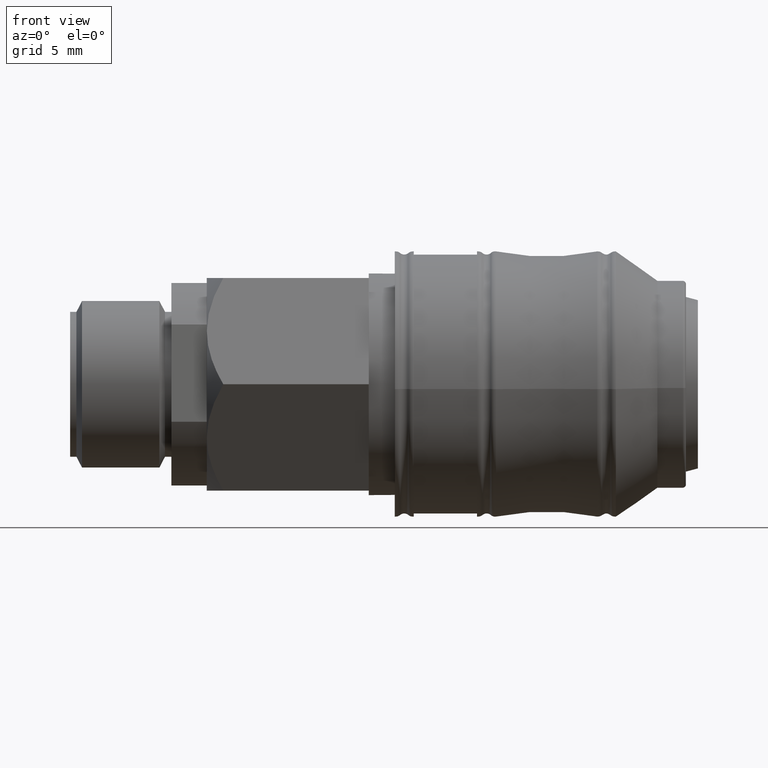
[diagram: clean part render]
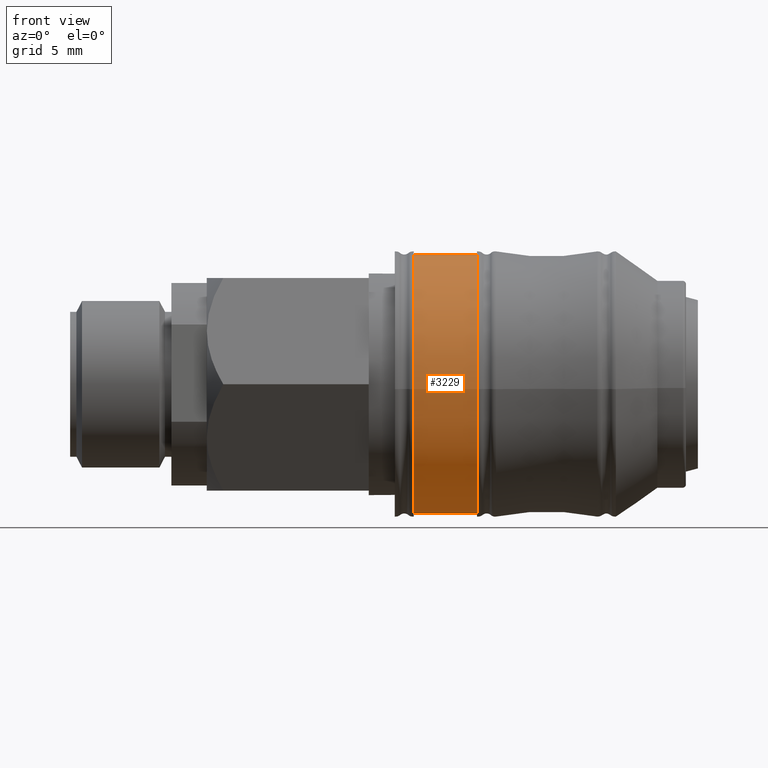
[diagram: same view with one face highlighted and labeled with its STEP entity id]
A machine part, front view. The second image highlights one B-rep face of the part: STEP entity #3229.
In plain terms, the highlighted cylindrical surface (bore or boss wall) has radius 10.25 mm, axis along (-1, 0, -0).
Its self-contained STEP definition (entity closure, byte-faithful):
#3198=CARTESIAN_POINT('',(16.350000000000009,-10.243263182529125,-0.371563417794677));
#3199=VERTEX_POINT('',#3198);
#3200=CARTESIAN_POINT('',(16.350000000000009,1.683787E-015,-8.914772E-016));
#3201=DIRECTION('',(-1.0,7.671066E-017,2.782597E-018));
#3202=DIRECTION('',(-7.676111E-017,-0.999342749515037,-0.036250089540944));
#3203=AXIS2_PLACEMENT_3D('',#3200,#3201,#3202);
#3204=CIRCLE('',#3203,10.25);
#3205=EDGE_CURVE('',#3199,#3199,#3204,.T.);
#3210=CARTESIAN_POINT('',(18.850000000000009,1.487997E-015,-7.878171E-016));
#3211=DIRECTION('',(-1.0,7.831566E-017,-4.146406E-017));
#3212=DIRECTION('',(-7.676111E-017,-0.999342749515037,-0.036250089540944));
#3213=AXIS2_PLACEMENT_3D('',#3210,#3211,#3212);
#3214=CYLINDRICAL_SURFACE('',#3213,10.249999999999998);
#3215=ORIENTED_EDGE('',*,*,#3205,.F.);
#3216=EDGE_LOOP('',(#3215));
#3217=FACE_OUTER_BOUND('',#3216,.T.);
#3218=CARTESIAN_POINT('',(21.350000000000009,-10.243263182529123,-0.371563417794676));
#3219=VERTEX_POINT('',#3218);
#3220=CARTESIAN_POINT('',(21.350000000000009,1.292208E-015,-6.841569E-016));
#3221=DIRECTION('',(-1.0,7.671066E-017,2.782597E-018));
#3222=DIRECTION('',(-7.676111E-017,-0.999342749515037,-0.036250089540944));
#3223=AXIS2_PLACEMENT_3D('',#3220,#3221,#3222);
#3224=CIRCLE('',#3223,10.249999999999998);
#3225=EDGE_CURVE('',#3219,#3219,#3224,.T.);
#3226=ORIENTED_EDGE('',*,*,#3225,.T.);
#3227=EDGE_LOOP('',(#3226));
#3228=FACE_BOUND('',#3227,.T.);
#3229=ADVANCED_FACE('',(#3217,#3228),#3214,.T.);